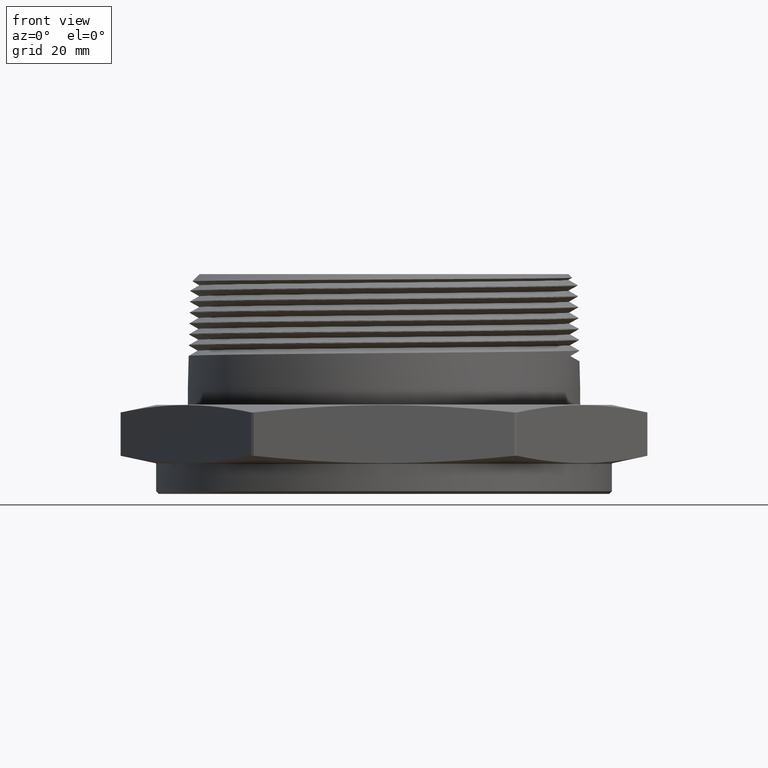
[diagram: clean part render]
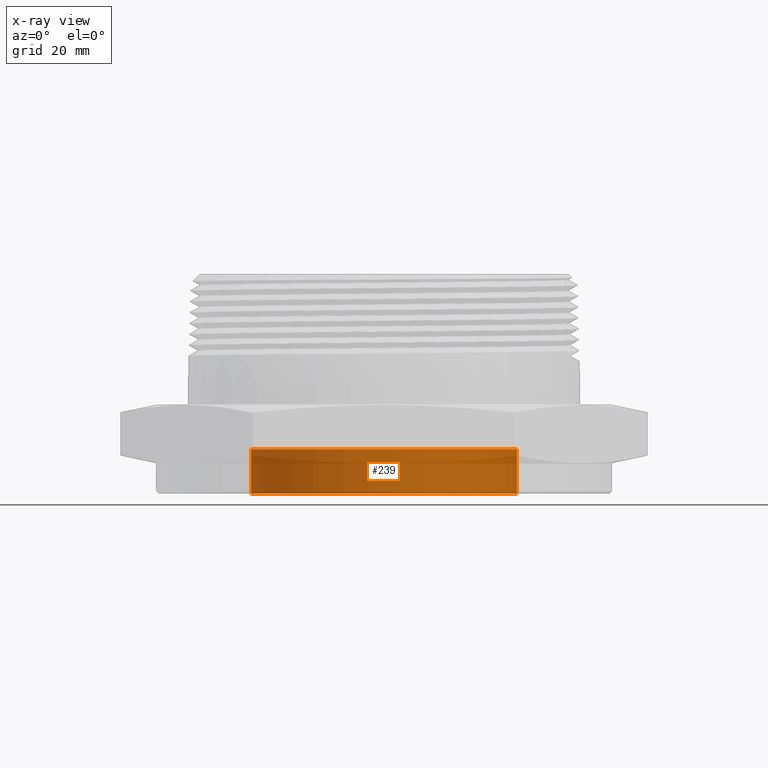
[diagram: x-ray — body ghosted, one internal face saturated and labeled with its STEP entity id]
A machine part, front view, then the same camera in x-ray: the body is ghosted and one INTERNAL B-rep face — a face not visible from any outside direction — is saturated and labeled: STEP entity #239.
In plain terms, the highlighted cylindrical surface (partial cylindrical patch) has radius 38.735 mm, axis along (0, 0, -1).
Its self-contained STEP definition (entity closure, byte-faithful):
#142 = VERTEX_POINT ( 'NONE', #358 ) ;
#145 = VERTEX_POINT ( 'NONE', #352 ) ;
#239 = ADVANCED_FACE ( 'NONE', ( #3482 ), #3491, .T. ) ;
#352 = CARTESIAN_POINT ( 'NONE',  ( -1.524999999999999900, 0.0000000000000000000, -0.3499999999999999800 ) ) ;
#358 = CARTESIAN_POINT ( 'NONE',  ( 1.524999999999999900, 1.867586368699713600E-016, 0.1600000000000000600 ) ) ;
#1731 = CARTESIAN_POINT ( 'NONE',  ( -3.540212176806154500E-018, 0.0000000000000000000, 0.1600000000000000600 ) ) ;
#1732 = DIRECTION ( 'NONE',  ( 0.0000000000000000000, 0.0000000000000000000, -1.000000000000000000 ) ) ;
#1741 = DIRECTION ( 'NONE',  ( -1.000000000000000000, 0.0000000000000000000, 0.0000000000000000000 ) ) ;
#1933 = CARTESIAN_POINT ( 'NONE',  ( -1.524999999999999900, 0.0000000000000000000, 0.1600000000000000600 ) ) ;
#1934 = CARTESIAN_POINT ( 'NONE',  ( 1.524999999999999900, 1.867586368699713600E-016, -0.3499999999999999800 ) ) ;
#3482 = FACE_OUTER_BOUND ( 'NONE', #6543, .T. ) ;
#3491 = CYLINDRICAL_SURFACE ( 'NONE', #6232, 1.524999999999999900 ) ;
#4267 = CARTESIAN_POINT ( 'NONE',  ( 1.524999999999999900, 1.867586368699713600E-016, 0.1600000000000000600 ) ) ;
#4268 = DIRECTION ( 'NONE',  ( 0.0000000000000000000, 0.0000000000000000000, -1.000000000000000000 ) ) ;
#4269 = DIRECTION ( 'NONE',  ( 0.0000000000000000000, 0.0000000000000000000, -1.000000000000000000 ) ) ;
#4273 = CARTESIAN_POINT ( 'NONE',  ( -1.524999999999999900, 0.0000000000000000000, 0.1600000000000000600 ) ) ;
#4277 = CARTESIAN_POINT ( 'NONE',  ( -3.540212176806154500E-018, 0.0000000000000000000, 0.1600000000000000600 ) ) ;
#4278 = DIRECTION ( 'NONE',  ( 0.0000000000000000000, 0.0000000000000000000, -1.000000000000000000 ) ) ;
#4279 = DIRECTION ( 'NONE',  ( -1.000000000000000000, 0.0000000000000000000, 0.0000000000000000000 ) ) ;
#4281 = CARTESIAN_POINT ( 'NONE',  ( -3.540212176806154500E-018, 0.0000000000000000000, -0.3499999999999999800 ) ) ;
#4282 = DIRECTION ( 'NONE',  ( 0.0000000000000000000, 0.0000000000000000000, -1.000000000000000000 ) ) ;
#4283 = DIRECTION ( 'NONE',  ( -1.000000000000000000, 0.0000000000000000000, 0.0000000000000000000 ) ) ;
#6232 = AXIS2_PLACEMENT_3D ( 'NONE', #1731, #1732, #1741 ) ;
#6322 = AXIS2_PLACEMENT_3D ( 'NONE', #4277, #4278, #4279 ) ;
#6323 = AXIS2_PLACEMENT_3D ( 'NONE', #4281, #4282, #4283 ) ;
#6402 = VERTEX_POINT ( 'NONE', #1933 ) ;
#6403 = VERTEX_POINT ( 'NONE', #1934 ) ;
#6483 = ORIENTED_EDGE ( 'NONE', *, *, #7550, .F. ) ;
#6484 = ORIENTED_EDGE ( 'NONE', *, *, #7554, .T. ) ;
#6485 = ORIENTED_EDGE ( 'NONE', *, *, #7553, .T. ) ;
#6486 = ORIENTED_EDGE ( 'NONE', *, *, #7555, .F. ) ;
#6543 = EDGE_LOOP ( 'NONE', ( #6483, #6484, #6485, #6486 ) ) ;
#7394 = LINE ( 'NONE', #4267, #7397 ) ;
#7396 = LINE ( 'NONE', #4273, #7400 ) ;
#7397 = VECTOR ( 'NONE', #4268, 39.37007874015748100 ) ;
#7399 = CIRCLE ( 'NONE', #6322, 1.524999999999999900 ) ;
#7400 = VECTOR ( 'NONE', #4269, 39.37007874015748100 ) ;
#7401 = CIRCLE ( 'NONE', #6323, 1.524999999999999900 ) ;
#7550 = EDGE_CURVE ( 'NONE', #142, #6403, #7394, .T. ) ;
#7553 = EDGE_CURVE ( 'NONE', #6402, #145, #7396, .T. ) ;
#7554 = EDGE_CURVE ( 'NONE', #142, #6402, #7399, .T. ) ;
#7555 = EDGE_CURVE ( 'NONE', #6403, #145, #7401, .T. ) ;